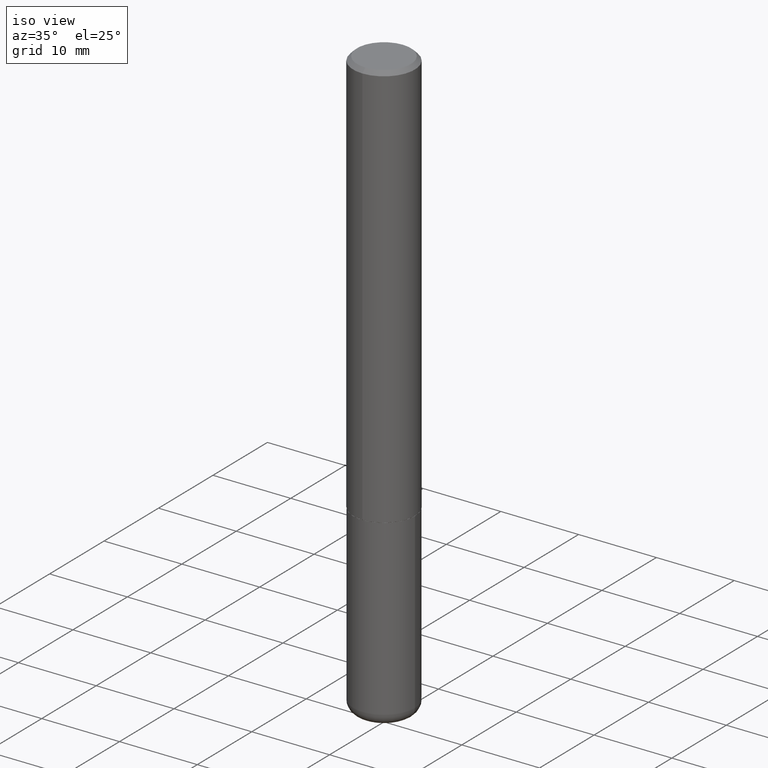
[diagram: clean part render]
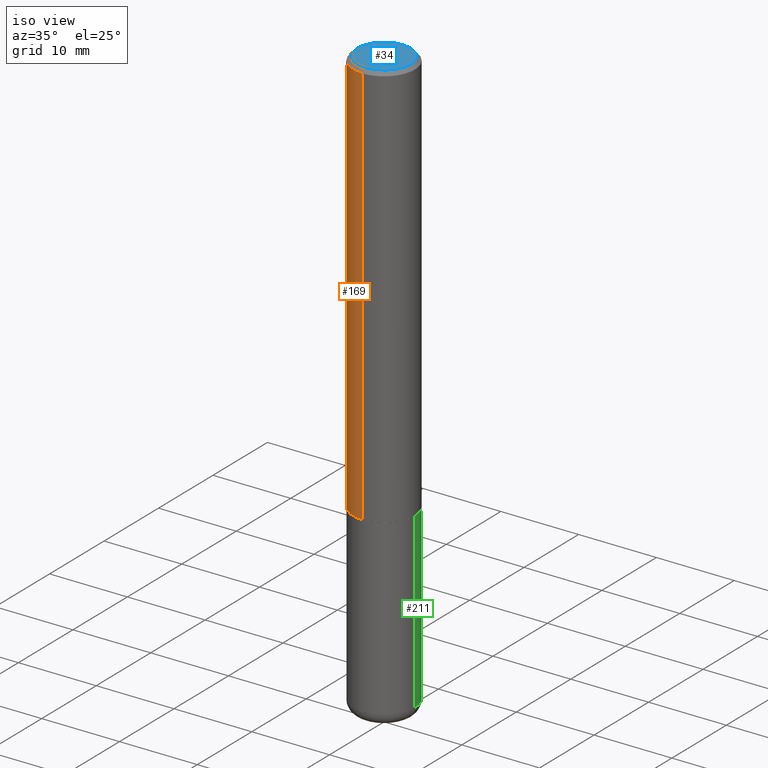
[diagram: same view with three faces highlighted in distinct colors, each labeled with its STEP entity id]
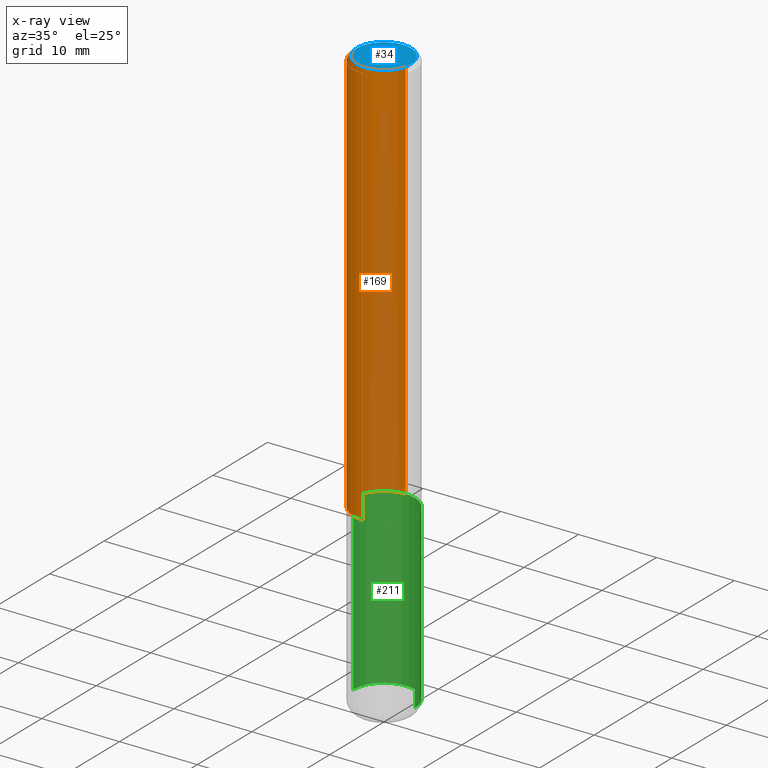
[diagram: x-ray of the same camera — body ghosted, the three highlighted faces saturated]
A machine part, iso view with three faces highlighted in distinct colors.
The next image is the same camera in x-ray (body ghosted, the three faces saturated) — at least one of them is partly hidden behind the body in this view.
Their STEP definitions:

[orange] entity #169 — the highlighted cylindrical surface (partial cylindrical patch) has radius 3.9688 mm, axis along (-0, 0, 1).
#2 = AXIS2_PLACEMENT_3D ( 'NONE', #108, #173, #365 ) ;
#23 = AXIS2_PLACEMENT_3D ( 'NONE', #119, #376, #87 ) ;
#36 = DIRECTION ( 'NONE',  ( -2.445176063107631214E-29, 3.491900563592034843E-15, 1.000000000000000000 ) ) ;
#37 = CARTESIAN_POINT ( 'NONE',  ( -1.091087918388430659E-15, -0.1562500000000074940, -2.061499999999999666 ) ) ;
#42 = VERTEX_POINT ( 'NONE', #137 ) ;
#64 = CARTESIAN_POINT ( 'NONE',  ( 1.110223024625157329E-15, 0.1562500000000001388, -5.456094630612559989E-16 ) ) ;
#87 = DIRECTION ( 'NONE',  ( -6.982962677686265922E-15, -1.000000000000000000, 3.491900563592035238E-15 ) ) ;
#95 = CIRCLE ( 'NONE', #2, 0.1562500000000000000 ) ;
#104 = AXIS2_PLACEMENT_3D ( 'NONE', #349, #339, #183 ) ;
#108 = CARTESIAN_POINT ( 'NONE',  ( 4.890352126215269679E-31, -6.983801127184080238E-17, -0.02000000000000003511 ) ) ;
#119 = CARTESIAN_POINT ( 'NONE',  ( 0.000000000000000000, 0.000000000000000000, 0.000000000000000000 ) ) ;
#127 = CIRCLE ( 'NONE', #104, 0.1562500000000002776 ) ;
#137 = CARTESIAN_POINT ( 'NONE',  ( -1.071952812151801215E-15, -0.1562500000000000833, -0.01999999999999948694 ) ) ;
#149 = VERTEX_POINT ( 'NONE', #37 ) ;
#162 = ORIENTED_EDGE ( 'NONE', *, *, #418, .T. ) ;
#169 = ADVANCED_FACE ( 'NONE', ( #310 ), #379, .T. ) ;
#173 = DIRECTION ( 'NONE',  ( -2.445176063107630933E-29, 3.491900563592034843E-15, 1.000000000000000000 ) ) ;
#183 = DIRECTION ( 'NONE',  ( -6.982962677686265922E-15, -1.000000000000000000, 3.496765431890250609E-15 ) ) ;
#193 = VERTEX_POINT ( 'NONE', #278 ) ;
#197 = EDGE_CURVE ( 'NONE', #233, #149, #127, .T. ) ;
#230 = EDGE_CURVE ( 'NONE', #233, #193, #387, .T. ) ;
#233 = VERTEX_POINT ( 'NONE', #261 ) ;
#237 = LINE ( 'NONE', #324, #258 ) ;
#243 = EDGE_LOOP ( 'NONE', ( #348, #327, #162, #338 ) ) ;
#258 = VECTOR ( 'NONE', #388, 39.37007874015748143 ) ;
#261 = CARTESIAN_POINT ( 'NONE',  ( 1.110223024625183362E-15, 0.1562499999999930611, -2.061500000000000554 ) ) ;
#278 = CARTESIAN_POINT ( 'NONE',  ( 1.091087918388479568E-15, 0.1562499999999999445, -0.02000000000000057981 ) ) ;
#310 = FACE_OUTER_BOUND ( 'NONE', #243, .T. ) ;
#324 = CARTESIAN_POINT ( 'NONE',  ( -1.091087918388479962E-15, -0.1562500000000001388, 5.456094630612559989E-16 ) ) ;
#327 = ORIENTED_EDGE ( 'NONE', *, *, #197, .T. ) ;
#338 = ORIENTED_EDGE ( 'NONE', *, *, #395, .F. ) ;
#339 = DIRECTION ( 'NONE',  ( -2.445176063107630933E-29, 3.491900563592034843E-15, 1.000000000000000000 ) ) ;
#348 = ORIENTED_EDGE ( 'NONE', *, *, #230, .F. ) ;
#349 = CARTESIAN_POINT ( 'NONE',  ( 5.040730454096381281E-29, -7.198553011844980434E-15, -2.061500000000000110 ) ) ;
#356 = VECTOR ( 'NONE', #36, 39.37007874015748143 ) ;
#365 = DIRECTION ( 'NONE',  ( -6.982962677686265133E-15, -1.000000000000000000, 3.496765431890256920E-15 ) ) ;
#376 = DIRECTION ( 'NONE',  ( -2.445176063107630933E-29, 3.491900563592034843E-15, 1.000000000000000000 ) ) ;
#379 = CYLINDRICAL_SURFACE ( 'NONE', #23, 0.1562500000000001388 ) ;
#387 = LINE ( 'NONE', #64, #356 ) ;
#388 = DIRECTION ( 'NONE',  ( -2.445176063107631214E-29, 3.491900563592034843E-15, 1.000000000000000000 ) ) ;
#395 = EDGE_CURVE ( 'NONE', #193, #42, #95, .T. ) ;
#418 = EDGE_CURVE ( 'NONE', #149, #42, #237, .T. ) ;

[blue] entity #34 — the highlighted planar face has unit normal (0, -0, -1).
#13 = EDGE_LOOP ( 'NONE', ( #408, #228 ) ) ;
#17 = FACE_OUTER_BOUND ( 'NONE', #13, .T. ) ;
#34 = ADVANCED_FACE ( 'NONE', ( #17 ), #62, .F. ) ;
#41 = CARTESIAN_POINT ( 'NONE',  ( 9.514286648347545493E-16, 0.1362500000000001210, -5.205622732494513937E-16 ) ) ;
#59 = AXIS2_PLACEMENT_3D ( 'NONE', #107, #209, #361 ) ;
#62 = PLANE ( 'NONE',  #271 ) ;
#107 = CARTESIAN_POINT ( 'NONE',  ( 2.190428889620163364E-45, -3.128101894001013777E-31, -8.958164292007245599E-17 ) ) ;
#114 = CARTESIAN_POINT ( 'NONE',  ( 2.190428889620163364E-45, -3.128101894001013777E-31, -8.958164292007245599E-17 ) ) ;
#121 = EDGE_CURVE ( 'NONE', #368, #247, #180, .T. ) ;
#175 = CARTESIAN_POINT ( 'NONE',  ( 1.021258291611617059E-15, 0.1362500000000001210, -5.653530947094876156E-16 ) ) ;
#178 = DIRECTION ( 'NONE',  ( 6.982962677686265922E-15, 1.000000000000000000, -3.491900563592034843E-15 ) ) ;
#180 = CIRCLE ( 'NONE', #59, 0.1362500000000001210 ) ;
#209 = DIRECTION ( 'NONE',  ( -2.445176063107630933E-29, 3.491900563592034843E-15, 1.000000000000000000 ) ) ;
#228 = ORIENTED_EDGE ( 'NONE', *, *, #279, .T. ) ;
#247 = VERTEX_POINT ( 'NONE', #409 ) ;
#253 = DIRECTION ( 'NONE',  ( -2.445176063107630933E-29, 3.491900563592034843E-15, 1.000000000000000000 ) ) ;
#263 = CIRCLE ( 'NONE', #318, 0.1362500000000001210 ) ;
#271 = AXIS2_PLACEMENT_3D ( 'NONE', #41, #335, #178 ) ;
#279 = EDGE_CURVE ( 'NONE', #247, #368, #263, .T. ) ;
#304 = DIRECTION ( 'NONE',  ( -6.982962677686265922E-15, -1.000000000000000000, 3.491900563592034843E-15 ) ) ;
#318 = AXIS2_PLACEMENT_3D ( 'NONE', #114, #253, #304 ) ;
#335 = DIRECTION ( 'NONE',  ( 2.445176063107630653E-29, -3.491900563592034843E-15, -1.000000000000000000 ) ) ;
#361 = DIRECTION ( 'NONE',  ( -6.982962677686265922E-15, -1.000000000000000000, 3.491900563592034843E-15 ) ) ;
#368 = VERTEX_POINT ( 'NONE', #175 ) ;
#408 = ORIENTED_EDGE ( 'NONE', *, *, #121, .T. ) ;
#409 = CARTESIAN_POINT ( 'NONE',  ( -1.003347832174086672E-15, -0.1362500000000001210, 3.861898088693426789E-16 ) ) ;

[green] entity #211 — the highlighted cylindrical surface (partial cylindrical patch) has radius 3.9688 mm, axis along (-0, 0, 1).
#1 = CIRCLE ( 'NONE', #283, 0.1562500000000000000 ) ;
#8 = VECTOR ( 'NONE', #264, 39.37007874015748143 ) ;
#24 = EDGE_CURVE ( 'NONE', #301, #331, #1, .T. ) ;
#29 = CARTESIAN_POINT ( 'NONE',  ( 0.1562499999999999722, -1.135604305458732800E-14, -2.940000000000000391 ) ) ;
#44 = ORIENTED_EDGE ( 'NONE', *, *, #24, .T. ) ;
#50 = ORIENTED_EDGE ( 'NONE', *, *, #96, .F. ) ;
#56 = CYLINDRICAL_SURFACE ( 'NONE', #196, 0.1562500000000000000 ) ;
#65 = LINE ( 'NONE', #299, #8 ) ;
#79 = FACE_OUTER_BOUND ( 'NONE', #111, .T. ) ;
#89 = ORIENTED_EDGE ( 'NONE', *, *, #347, .F. ) ;
#96 = EDGE_CURVE ( 'NONE', #301, #181, #65, .T. ) ;
#105 = AXIS2_PLACEMENT_3D ( 'NONE', #300, #141, #145 ) ;
#111 = EDGE_LOOP ( 'NONE', ( #44, #269, #89, #50 ) ) ;
#141 = DIRECTION ( 'NONE',  ( -2.445468806185136597E-29, 3.491481338843145583E-15, 1.000000000000000000 ) ) ;
#145 = DIRECTION ( 'NONE',  ( 1.000000000000000000, -6.982962677686269077E-15, 0.000000000000000000 ) ) ;
#147 = CARTESIAN_POINT ( 'NONE',  ( 0.1562500000000000000, -8.292268179752468540E-15, -2.062500000000000000 ) ) ;
#165 = DIRECTION ( 'NONE',  ( -2.445468806185136597E-29, 3.491481338843145583E-15, 1.000000000000000000 ) ) ;
#171 = CARTESIAN_POINT ( 'NONE',  ( -0.1562500000000000000, -7.622844674156262556E-15, -2.062500000000000000 ) ) ;
#181 = VERTEX_POINT ( 'NONE', #147 ) ;
#186 = CARTESIAN_POINT ( 'NONE',  ( -0.1562499999999999722, -9.154732111573693074E-15, -2.940000000000000391 ) ) ;
#196 = AXIS2_PLACEMENT_3D ( 'NONE', #275, #219, #215 ) ;
#205 = CIRCLE ( 'NONE', #105, 0.1562500000000000000 ) ;
#210 = CARTESIAN_POINT ( 'NONE',  ( -0.1562500000000000000, 1.110223024625156540E-15, -7.685836078523291160E-30 ) ) ;
#211 = ADVANCED_FACE ( 'NONE', ( #79 ), #56, .T. ) ;
#215 = DIRECTION ( 'NONE',  ( 1.000000000000000000, -6.982962677686266711E-15, 4.876176775795936353E-29 ) ) ;
#219 = DIRECTION ( 'NONE',  ( -2.445468806185136597E-29, 3.491481338843145583E-15, 1.000000000000000000 ) ) ;
#245 = LINE ( 'NONE', #210, #374 ) ;
#264 = DIRECTION ( 'NONE',  ( -2.445468806185136877E-29, 3.491481338843145188E-15, 1.000000000000000000 ) ) ;
#266 = CARTESIAN_POINT ( 'NONE',  ( 7.189678290184301639E-29, -1.026495513619884961E-14, -2.940000000000000391 ) ) ;
#269 = ORIENTED_EDGE ( 'NONE', *, *, #285, .T. ) ;
#275 = CARTESIAN_POINT ( 'NONE',  ( 0.000000000000000000, 0.000000000000000000, 0.000000000000000000 ) ) ;
#283 = AXIS2_PLACEMENT_3D ( 'NONE', #266, #165, #398 ) ;
#285 = EDGE_CURVE ( 'NONE', #331, #313, #245, .T. ) ;
#299 = CARTESIAN_POINT ( 'NONE',  ( 0.1562500000000000000, -1.091087918388479174E-15, 7.619026212181150377E-30 ) ) ;
#300 = CARTESIAN_POINT ( 'NONE',  ( 5.043779412756844791E-29, -7.201180261363988578E-15, -2.062500000000000000 ) ) ;
#301 = VERTEX_POINT ( 'NONE', #29 ) ;
#313 = VERTEX_POINT ( 'NONE', #171 ) ;
#331 = VERTEX_POINT ( 'NONE', #186 ) ;
#347 = EDGE_CURVE ( 'NONE', #181, #313, #205, .T. ) ;
#374 = VECTOR ( 'NONE', #381, 39.37007874015748143 ) ;
#381 = DIRECTION ( 'NONE',  ( -2.445468806185136877E-29, 3.491481338843145188E-15, 1.000000000000000000 ) ) ;
#398 = DIRECTION ( 'NONE',  ( 1.000000000000000000, -6.982962677686262766E-15, 0.000000000000000000 ) ) ;